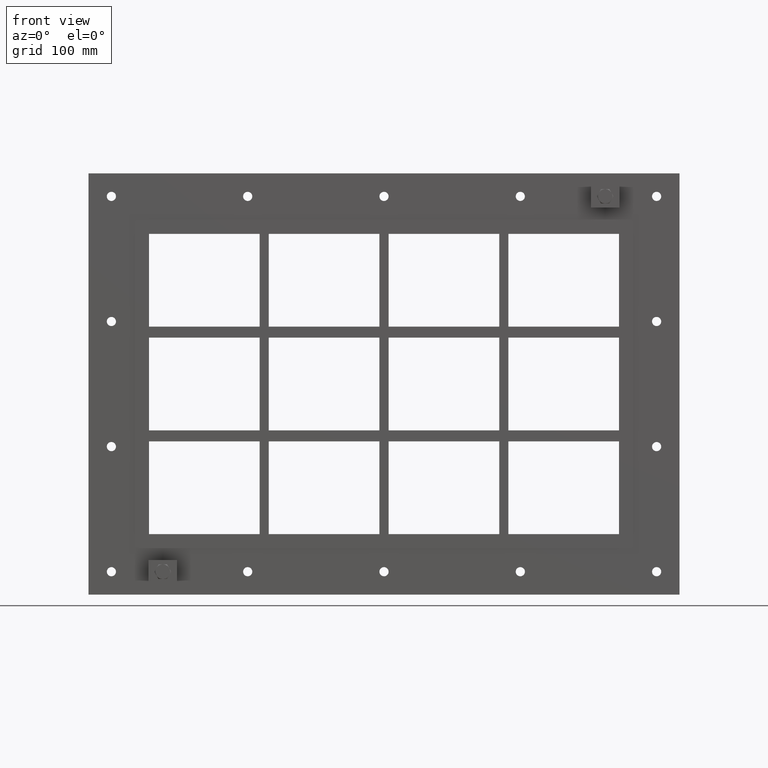
[diagram: clean part render]
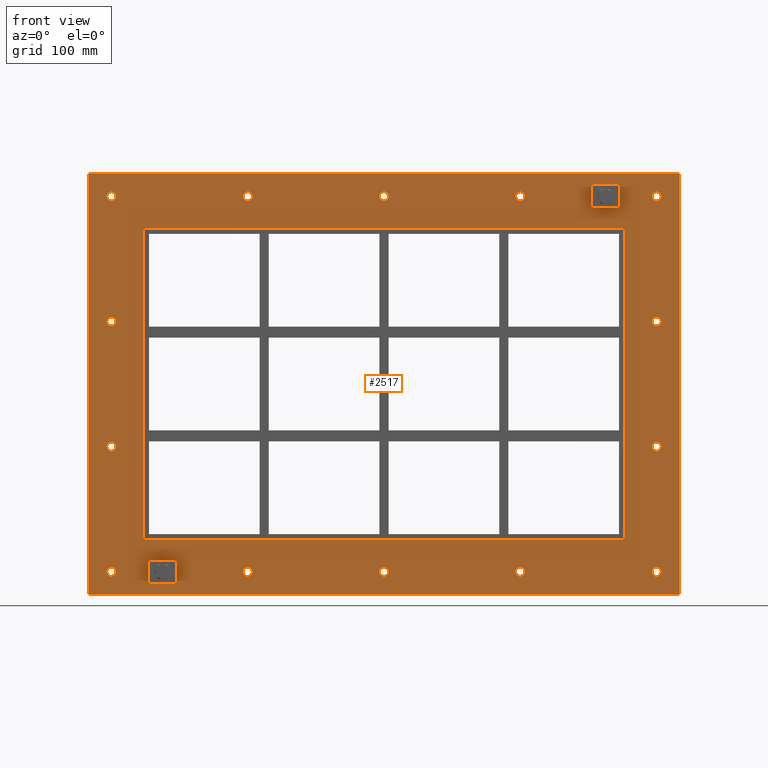
[diagram: same view with one face highlighted and labeled with its STEP entity id]
A machine part, front view. The second image highlights one B-rep face of the part: STEP entity #2517.
In plain terms, the highlighted planar face has unit normal (0, 1, 0).
Its self-contained STEP definition (entity closure, byte-faithful):
#84=CARTESIAN_POINT('',(-292.00000000000023,0.0,-204.5));
#85=VERTEX_POINT('',#84);
#86=CARTESIAN_POINT('',(-297.00000000000023,0.0,-204.5));
#87=DIRECTION('',(0.0,1.0,0.0));
#88=DIRECTION('',(1.0,0.0,0.0));
#89=AXIS2_PLACEMENT_3D('',#86,#87,#88);
#90=CIRCLE('',#89,5.0);
#91=EDGE_CURVE('',#85,#85,#90,.T.);
#112=CARTESIAN_POINT('',(301.99999999999983,0.0,-68.19999999999996));
#113=VERTEX_POINT('',#112);
#114=CARTESIAN_POINT('',(296.99999999999983,0.0,-68.19999999999996));
#115=DIRECTION('',(0.0,1.0,0.0));
#116=DIRECTION('',(1.0,0.0,0.0));
#117=AXIS2_PLACEMENT_3D('',#114,#115,#116);
#118=CIRCLE('',#117,5.0);
#119=EDGE_CURVE('',#113,#113,#118,.T.);
#140=CARTESIAN_POINT('',(-292.00000000000023,0.0,-68.19999999999996));
#141=VERTEX_POINT('',#140);
#142=CARTESIAN_POINT('',(-297.00000000000023,0.0,-68.19999999999996));
#143=DIRECTION('',(0.0,1.0,0.0));
#144=DIRECTION('',(1.0,0.0,0.0));
#145=AXIS2_PLACEMENT_3D('',#142,#143,#144);
#146=CIRCLE('',#145,5.0);
#147=EDGE_CURVE('',#141,#141,#146,.T.);
#168=CARTESIAN_POINT('',(301.99999999999983,0.0,68.100000000000051));
#169=VERTEX_POINT('',#168);
#170=CARTESIAN_POINT('',(296.99999999999983,0.0,68.100000000000051));
#171=DIRECTION('',(0.0,1.0,0.0));
#172=DIRECTION('',(1.0,0.0,0.0));
#173=AXIS2_PLACEMENT_3D('',#170,#171,#172);
#174=CIRCLE('',#173,5.0);
#175=EDGE_CURVE('',#169,#169,#174,.T.);
#196=CARTESIAN_POINT('',(-292.00000000000023,0.0,68.100000000000051));
#197=VERTEX_POINT('',#196);
#198=CARTESIAN_POINT('',(-297.00000000000023,0.0,68.100000000000051));
#199=DIRECTION('',(0.0,1.0,0.0));
#200=DIRECTION('',(1.0,0.0,0.0));
#201=AXIS2_PLACEMENT_3D('',#198,#199,#200);
#202=CIRCLE('',#201,5.0);
#203=EDGE_CURVE('',#197,#197,#202,.T.);
#224=CARTESIAN_POINT('',(-143.5000000000002,0.0,204.40000000000009));
#225=VERTEX_POINT('',#224);
#226=CARTESIAN_POINT('',(-148.5000000000002,0.0,204.40000000000009));
#227=DIRECTION('',(0.0,1.0,0.0));
#228=DIRECTION('',(1.0,0.0,0.0));
#229=AXIS2_PLACEMENT_3D('',#226,#227,#228);
#230=CIRCLE('',#229,5.0);
#231=EDGE_CURVE('',#225,#225,#230,.T.);
#252=CARTESIAN_POINT('',(-143.50000000000017,0.0,-204.49999999999994));
#253=VERTEX_POINT('',#252);
#254=CARTESIAN_POINT('',(-148.50000000000017,0.0,-204.49999999999994));
#255=DIRECTION('',(0.0,1.0,0.0));
#256=DIRECTION('',(1.0,0.0,0.0));
#257=AXIS2_PLACEMENT_3D('',#254,#255,#256);
#258=CIRCLE('',#257,5.0);
#259=EDGE_CURVE('',#253,#253,#258,.T.);
#280=CARTESIAN_POINT('',(4.999999999999822,0.0,204.40000000000009));
#281=VERTEX_POINT('',#280);
#282=CARTESIAN_POINT('',(-1.776357E-013,0.0,204.40000000000009));
#283=DIRECTION('',(0.0,1.0,0.0));
#284=DIRECTION('',(1.0,0.0,0.0));
#285=AXIS2_PLACEMENT_3D('',#282,#283,#284);
#286=CIRCLE('',#285,5.0);
#287=EDGE_CURVE('',#281,#281,#286,.T.);
#308=CARTESIAN_POINT('',(4.999999999999858,0.0,-204.49999999999994));
#309=VERTEX_POINT('',#308);
#310=CARTESIAN_POINT('',(-1.421085E-013,0.0,-204.49999999999994));
#311=DIRECTION('',(0.0,1.0,0.0));
#312=DIRECTION('',(1.0,0.0,0.0));
#313=AXIS2_PLACEMENT_3D('',#310,#311,#312);
#314=CIRCLE('',#313,5.0);
#315=EDGE_CURVE('',#309,#309,#314,.T.);
#336=CARTESIAN_POINT('',(153.49999999999983,0.0,204.40000000000009));
#337=VERTEX_POINT('',#336);
#338=CARTESIAN_POINT('',(148.49999999999983,0.0,204.40000000000009));
#339=DIRECTION('',(0.0,1.0,0.0));
#340=DIRECTION('',(1.0,0.0,0.0));
#341=AXIS2_PLACEMENT_3D('',#338,#339,#340);
#342=CIRCLE('',#341,5.0);
#343=EDGE_CURVE('',#337,#337,#342,.T.);
#364=CARTESIAN_POINT('',(153.49999999999989,0.0,-204.49999999999994));
#365=VERTEX_POINT('',#364);
#366=CARTESIAN_POINT('',(148.49999999999989,0.0,-204.49999999999994));
#367=DIRECTION('',(0.0,1.0,0.0));
#368=DIRECTION('',(1.0,0.0,0.0));
#369=AXIS2_PLACEMENT_3D('',#366,#367,#368);
#370=CIRCLE('',#369,5.0);
#371=EDGE_CURVE('',#365,#365,#370,.T.);
#392=CARTESIAN_POINT('',(301.99999999999989,0.0,-204.49999999999994));
#393=VERTEX_POINT('',#392);
#394=CARTESIAN_POINT('',(296.99999999999989,0.0,-204.49999999999994));
#395=DIRECTION('',(0.0,1.0,0.0));
#396=DIRECTION('',(1.0,0.0,0.0));
#397=AXIS2_PLACEMENT_3D('',#394,#395,#396);
#398=CIRCLE('',#397,5.0);
#399=EDGE_CURVE('',#393,#393,#398,.T.);
#420=CARTESIAN_POINT('',(-292.00000000000023,0.0,204.40000000000009));
#421=VERTEX_POINT('',#420);
#422=CARTESIAN_POINT('',(-297.00000000000023,0.0,204.40000000000009));
#423=DIRECTION('',(0.0,1.0,0.0));
#424=DIRECTION('',(1.0,0.0,0.0));
#425=AXIS2_PLACEMENT_3D('',#422,#423,#424);
#426=CIRCLE('',#425,5.0);
#427=EDGE_CURVE('',#421,#421,#426,.T.);
#448=CARTESIAN_POINT('',(301.99999999999983,0.0,204.40000000000009));
#449=VERTEX_POINT('',#448);
#450=CARTESIAN_POINT('',(296.99999999999983,0.0,204.40000000000009));
#451=DIRECTION('',(0.0,1.0,0.0));
#452=DIRECTION('',(1.0,0.0,0.0));
#453=AXIS2_PLACEMENT_3D('',#450,#451,#452);
#454=CIRCLE('',#453,5.0);
#455=EDGE_CURVE('',#449,#449,#454,.T.);
#2366=CARTESIAN_POINT('',(-3.865146E-014,0.0,3.831326E-014));
#2367=DIRECTION('',(0.0,1.0,0.0));
#2368=DIRECTION('',(0.0,0.0,1.0));
#2369=AXIS2_PLACEMENT_3D('',#2366,#2367,#2368);
#2370=PLANE('',#2369);
#2371=CARTESIAN_POINT('',(-322.0,0.0,229.50000000000003));
#2372=VERTEX_POINT('',#2371);
#2373=CARTESIAN_POINT('',(321.99999999999994,0.0,229.50000000000003));
#2374=VERTEX_POINT('',#2373);
#2375=CARTESIAN_POINT('',(-322.0,0.0,229.50000000000003));
#2376=DIRECTION('',(1.0,0.0,0.0));
#2377=VECTOR('',#2376,644.0);
#2378=LINE('',#2375,#2377);
#2379=EDGE_CURVE('',#2372,#2374,#2378,.T.);
#2380=ORIENTED_EDGE('',*,*,#2379,.F.);
#2381=CARTESIAN_POINT('',(-322.0,0.0,-229.49999999999994));
#2382=VERTEX_POINT('',#2381);
#2383=CARTESIAN_POINT('',(-322.0,0.0,-229.49999999999994));
#2384=DIRECTION('',(0.0,0.0,1.0));
#2385=VECTOR('',#2384,459.0);
#2386=LINE('',#2383,#2385);
#2387=EDGE_CURVE('',#2382,#2372,#2386,.T.);
#2388=ORIENTED_EDGE('',*,*,#2387,.F.);
#2389=CARTESIAN_POINT('',(321.99999999999994,0.0,-229.49999999999994));
#2390=VERTEX_POINT('',#2389);
#2391=CARTESIAN_POINT('',(321.99999999999994,0.0,-229.49999999999994));
#2392=DIRECTION('',(-1.0,0.0,0.0));
#2393=VECTOR('',#2392,644.0);
#2394=LINE('',#2391,#2393);
#2395=EDGE_CURVE('',#2390,#2382,#2394,.T.);
#2396=ORIENTED_EDGE('',*,*,#2395,.F.);
#2397=CARTESIAN_POINT('',(321.99999999999994,0.0,229.50000000000003));
#2398=DIRECTION('',(0.0,0.0,-1.0));
#2399=VECTOR('',#2398,459.0);
#2400=LINE('',#2397,#2399);
#2401=EDGE_CURVE('',#2374,#2390,#2400,.T.);
#2402=ORIENTED_EDGE('',*,*,#2401,.F.);
#2403=EDGE_LOOP('',(#2380,#2388,#2396,#2402));
#2404=FACE_OUTER_BOUND('',#2403,.T.);
#2405=ORIENTED_EDGE('',*,*,#91,.T.);
#2406=EDGE_LOOP('',(#2405));
#2407=FACE_BOUND('',#2406,.T.);
#2408=ORIENTED_EDGE('',*,*,#119,.T.);
#2409=EDGE_LOOP('',(#2408));
#2410=FACE_BOUND('',#2409,.T.);
#2411=ORIENTED_EDGE('',*,*,#147,.T.);
#2412=EDGE_LOOP('',(#2411));
#2413=FACE_BOUND('',#2412,.T.);
#2414=ORIENTED_EDGE('',*,*,#175,.T.);
#2415=EDGE_LOOP('',(#2414));
#2416=FACE_BOUND('',#2415,.T.);
#2417=ORIENTED_EDGE('',*,*,#203,.T.);
#2418=EDGE_LOOP('',(#2417));
#2419=FACE_BOUND('',#2418,.T.);
#2420=ORIENTED_EDGE('',*,*,#231,.T.);
#2421=EDGE_LOOP('',(#2420));
#2422=FACE_BOUND('',#2421,.T.);
#2423=ORIENTED_EDGE('',*,*,#259,.T.);
#2424=EDGE_LOOP('',(#2423));
#2425=FACE_BOUND('',#2424,.T.);
#2426=ORIENTED_EDGE('',*,*,#287,.T.);
#2427=EDGE_LOOP('',(#2426));
#2428=FACE_BOUND('',#2427,.T.);
#2429=ORIENTED_EDGE('',*,*,#315,.T.);
#2430=EDGE_LOOP('',(#2429));
#2431=FACE_BOUND('',#2430,.T.);
#2432=ORIENTED_EDGE('',*,*,#343,.T.);
#2433=EDGE_LOOP('',(#2432));
#2434=FACE_BOUND('',#2433,.T.);
#2435=ORIENTED_EDGE('',*,*,#371,.T.);
#2436=EDGE_LOOP('',(#2435));
#2437=FACE_BOUND('',#2436,.T.);
#2438=ORIENTED_EDGE('',*,*,#399,.T.);
#2439=EDGE_LOOP('',(#2438));
#2440=FACE_BOUND('',#2439,.T.);
#2441=ORIENTED_EDGE('',*,*,#427,.T.);
#2442=EDGE_LOOP('',(#2441));
#2443=FACE_BOUND('',#2442,.T.);
#2444=ORIENTED_EDGE('',*,*,#455,.T.);
#2445=EDGE_LOOP('',(#2444));
#2446=FACE_BOUND('',#2445,.T.);
#2447=CARTESIAN_POINT('',(-260.0,0.0,169.50000000000003));
#2448=VERTEX_POINT('',#2447);
#2449=CARTESIAN_POINT('',(-262.0,0.0,167.5));
#2450=VERTEX_POINT('',#2449);
#2451=CARTESIAN_POINT('',(-260.0,0.0,167.5));
#2452=DIRECTION('',(0.0,-1.0,0.0));
#2453=DIRECTION('',(-0.707106781186548,0.0,0.707106781186548));
#2454=AXIS2_PLACEMENT_3D('',#2451,#2452,#2453);
#2455=CIRCLE('',#2454,2.0);
#2456=EDGE_CURVE('',#2448,#2450,#2455,.T.);
#2457=ORIENTED_EDGE('',*,*,#2456,.F.);
#2458=CARTESIAN_POINT('',(260.0,0.0,169.50000000000003));
#2459=VERTEX_POINT('',#2458);
#2460=CARTESIAN_POINT('',(260.0,0.0,169.50000000000003));
#2461=DIRECTION('',(-1.0,0.0,0.0));
#2462=VECTOR('',#2461,520.0);
#2463=LINE('',#2460,#2462);
#2464=EDGE_CURVE('',#2459,#2448,#2463,.T.);
#2465=ORIENTED_EDGE('',*,*,#2464,.F.);
#2466=CARTESIAN_POINT('',(262.0,0.0,167.50000000000003));
#2467=VERTEX_POINT('',#2466);
#2468=CARTESIAN_POINT('',(260.0,0.0,167.50000000000003));
#2469=DIRECTION('',(0.0,-1.0,0.0));
#2470=DIRECTION('',(0.70710678118656,0.0,0.707106781186535));
#2471=AXIS2_PLACEMENT_3D('',#2468,#2469,#2470);
#2472=CIRCLE('',#2471,2.0);
#2473=EDGE_CURVE('',#2467,#2459,#2472,.T.);
#2474=ORIENTED_EDGE('',*,*,#2473,.F.);
#2475=CARTESIAN_POINT('',(262.0,0.0,-167.5));
#2476=VERTEX_POINT('',#2475);
#2477=CARTESIAN_POINT('',(262.0,0.0,-167.49999999999997));
#2478=DIRECTION('',(0.0,0.0,1.0));
#2479=VECTOR('',#2478,335.0);
#2480=LINE('',#2477,#2479);
#2481=EDGE_CURVE('',#2476,#2467,#2480,.T.);
#2482=ORIENTED_EDGE('',*,*,#2481,.F.);
#2483=CARTESIAN_POINT('',(260.0,0.0,-169.50000000000003));
#2484=VERTEX_POINT('',#2483);
#2485=CARTESIAN_POINT('',(260.0,0.0,-167.5));
#2486=DIRECTION('',(0.0,-1.0,0.0));
#2487=DIRECTION('',(0.707106781186548,0.0,-0.707106781186548));
#2488=AXIS2_PLACEMENT_3D('',#2485,#2486,#2487);
#2489=CIRCLE('',#2488,2.0);
#2490=EDGE_CURVE('',#2484,#2476,#2489,.T.);
#2491=ORIENTED_EDGE('',*,*,#2490,.F.);
#2492=CARTESIAN_POINT('',(-260.0,0.0,-169.50000000000003));
#2493=VERTEX_POINT('',#2492);
#2494=CARTESIAN_POINT('',(-260.0,0.0,-169.50000000000003));
#2495=DIRECTION('',(1.0,0.0,0.0));
#2496=VECTOR('',#2495,520.0);
#2497=LINE('',#2494,#2496);
#2498=EDGE_CURVE('',#2493,#2484,#2497,.T.);
#2499=ORIENTED_EDGE('',*,*,#2498,.F.);
#2500=CARTESIAN_POINT('',(-262.0,0.0,-167.5));
#2501=VERTEX_POINT('',#2500);
#2502=CARTESIAN_POINT('',(-260.0,0.0,-167.5));
#2503=DIRECTION('',(0.0,-1.0,0.0));
#2504=DIRECTION('',(-0.707106781186548,0.0,-0.707106781186548));
#2505=AXIS2_PLACEMENT_3D('',#2502,#2503,#2504);
#2506=CIRCLE('',#2505,2.0);
#2507=EDGE_CURVE('',#2501,#2493,#2506,.T.);
#2508=ORIENTED_EDGE('',*,*,#2507,.F.);
#2509=CARTESIAN_POINT('',(-262.0,0.0,167.5));
#2510=DIRECTION('',(0.0,0.0,-1.0));
#2511=VECTOR('',#2510,335.0);
#2512=LINE('',#2509,#2511);
#2513=EDGE_CURVE('',#2450,#2501,#2512,.T.);
#2514=ORIENTED_EDGE('',*,*,#2513,.F.);
#2515=EDGE_LOOP('',(#2457,#2465,#2474,#2482,#2491,#2499,#2508,#2514));
#2516=FACE_BOUND('',#2515,.T.);
#2517=ADVANCED_FACE('',(#2404,#2407,#2410,#2413,#2416,#2419,#2422,#2425,#2428,#2431,#2434,#2437,#2440,#2443,#2446,#2516),#2370,.F.);